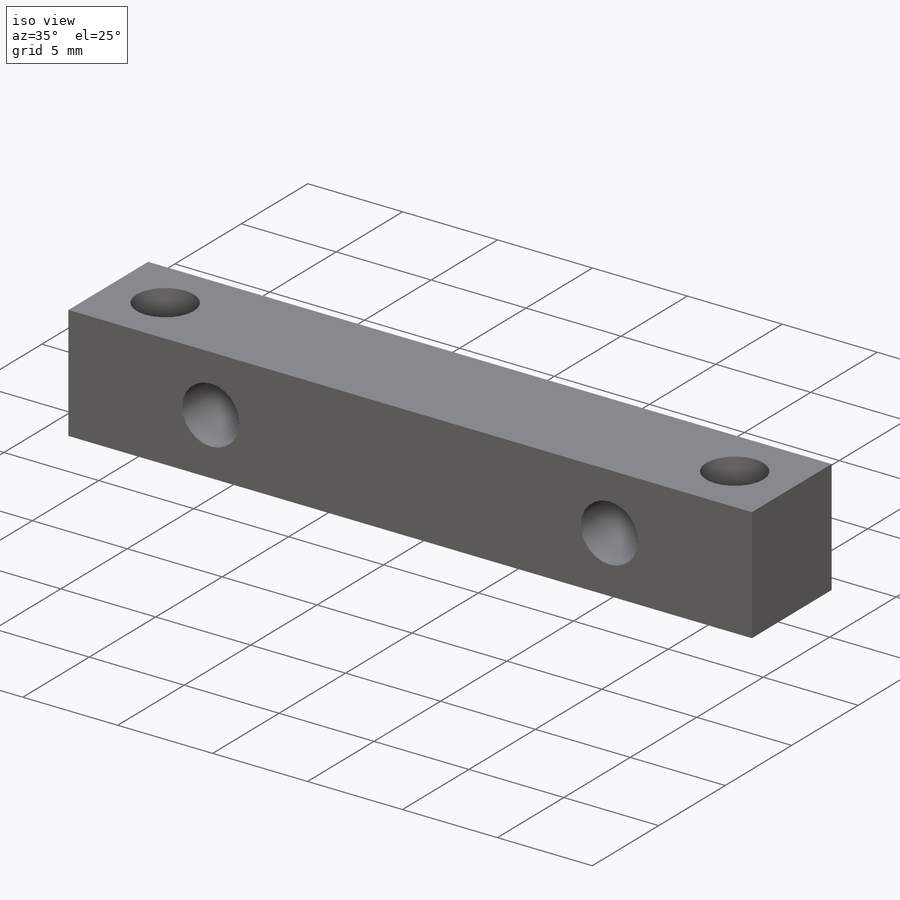
[diagram: iso view]
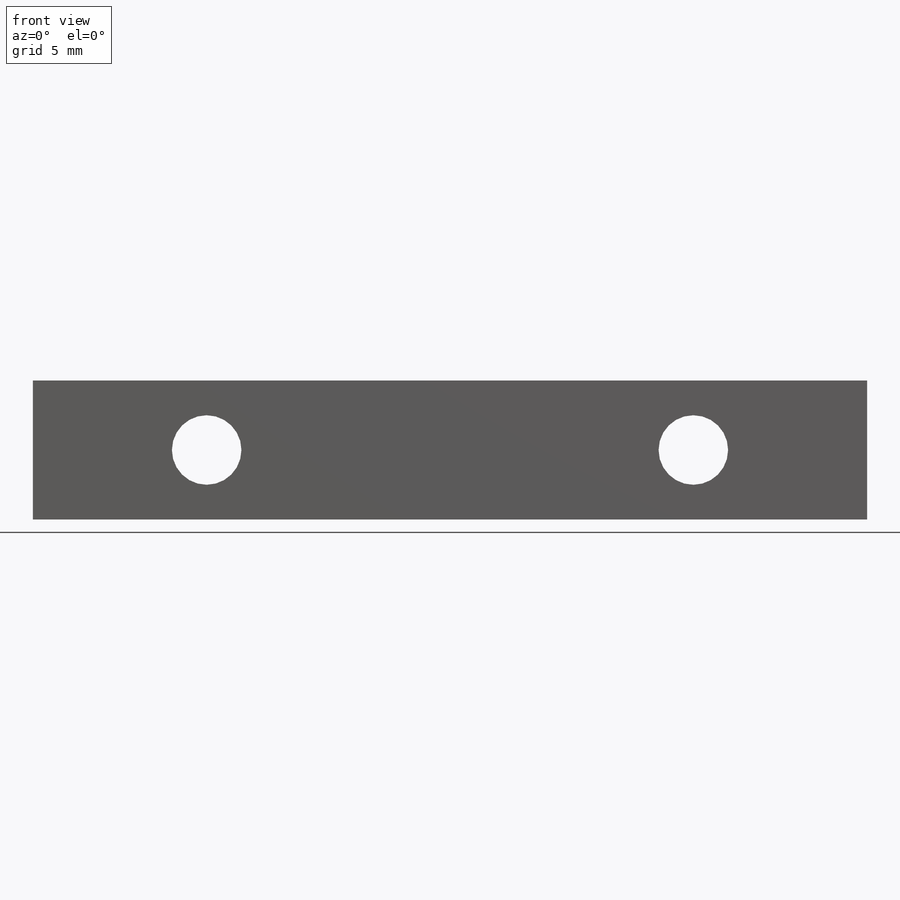
[diagram: front view]
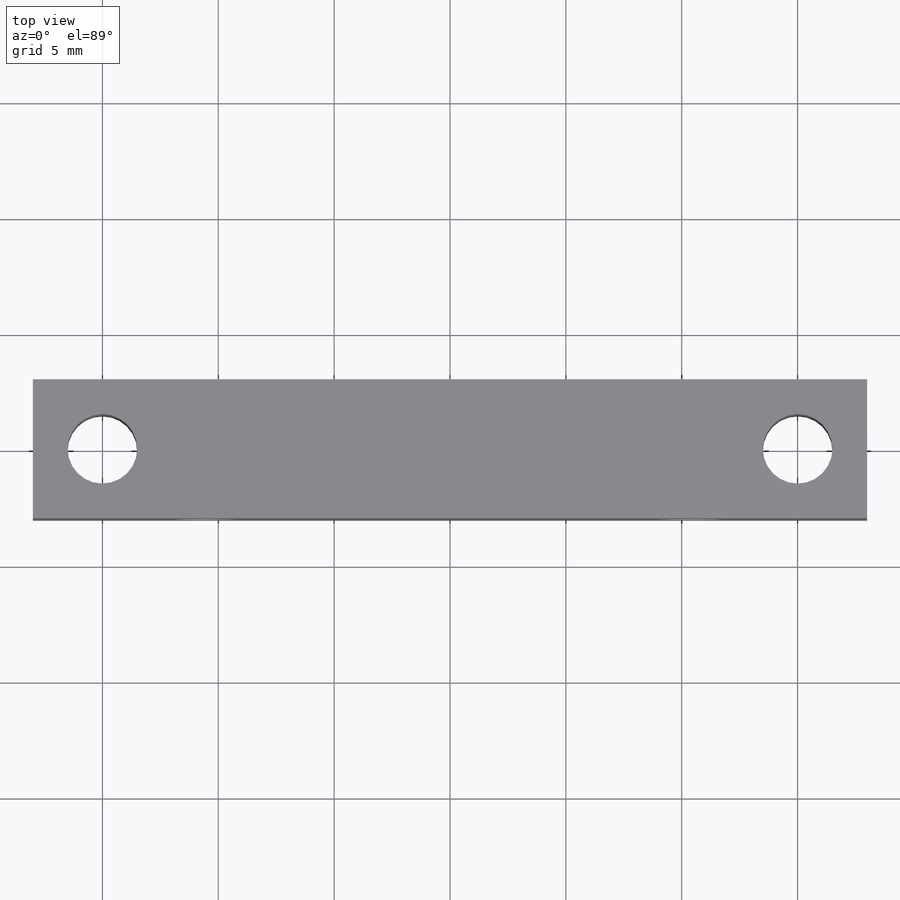
[diagram: top view]
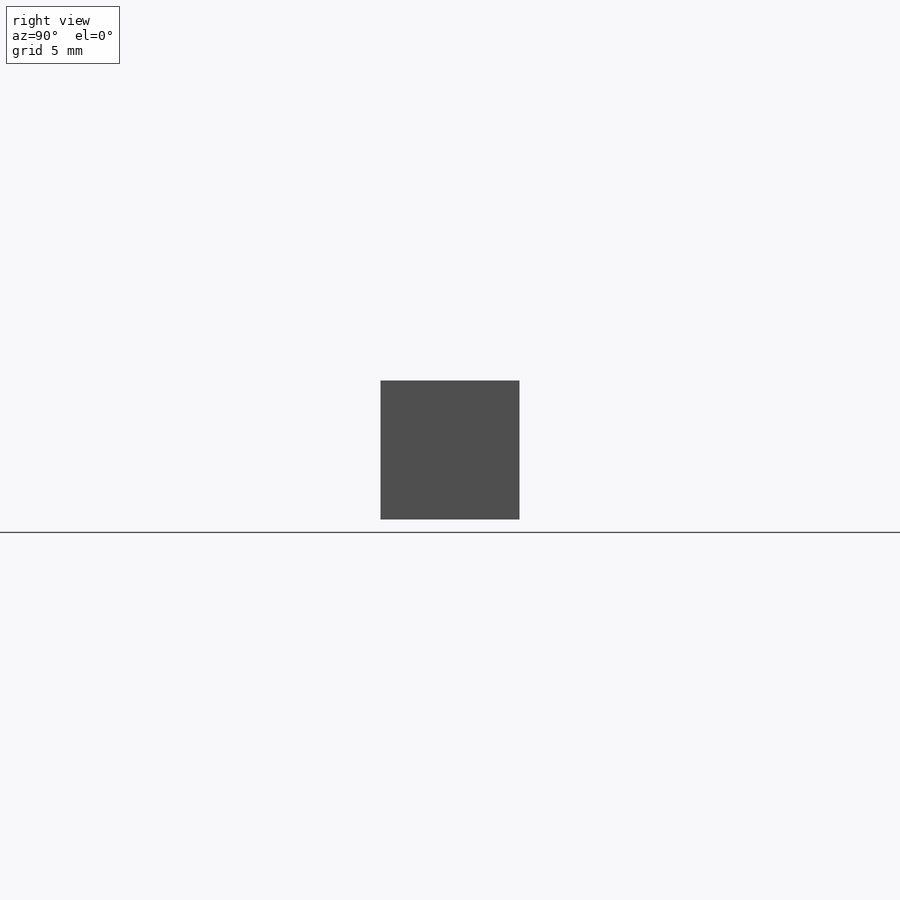
[diagram: right view]
SOLIDWORKS PART (.sldprt)
format: sldprt  version: not decoded by parser v0  size: 210,944 bytes
history: native  units: mm
features: plane x3, sketch x3, cut_extrude x2, mirror x2, material x1, extrude x1 (+9 scaffold rows collapsed)
feature tree (21):
  scaffold x9  (default folders/planes/origin — collapsed)
  material  "Matériau <non spécifié>"
  plane  "Plan de face"
  plane  "Plan de dessus"
  plane  "Plan de droite"
  sketch  "Esquisse1"  dims[c1.D1=~51.011696mm c1.D2=~83.176707mm c2.D1=6.0mm c2.D2=36.0mm c2.D3=3.0mm c2.D4=18.0mm c2.D5=~83.176707mm]
  extrude  "Boss.-Extru.1"  Depth=6mm
  sketch  "Esquisse2"  dims[D1=3.0mm D2=3.0mm D3=3.0mm]
  cut_extrude  "Enlèv. mat.-Extru.1"  Depth=60mm
  mirror  "Symétrie1"
  sketch  "Esquisse3"  dims[D1=3.0mm D2=3.0mm D3=7.5mm]
  cut_extrude  "Enlèv. mat.-Extru.2"  Depth=6mm
  mirror  "Symétrie2"
decode coverage: 6 of 8 modeling features carry decoded parameters
note: ~ marks probable driven/reference dimensions
note: suppression state not decoded; provenance and decode notes live in map.json
